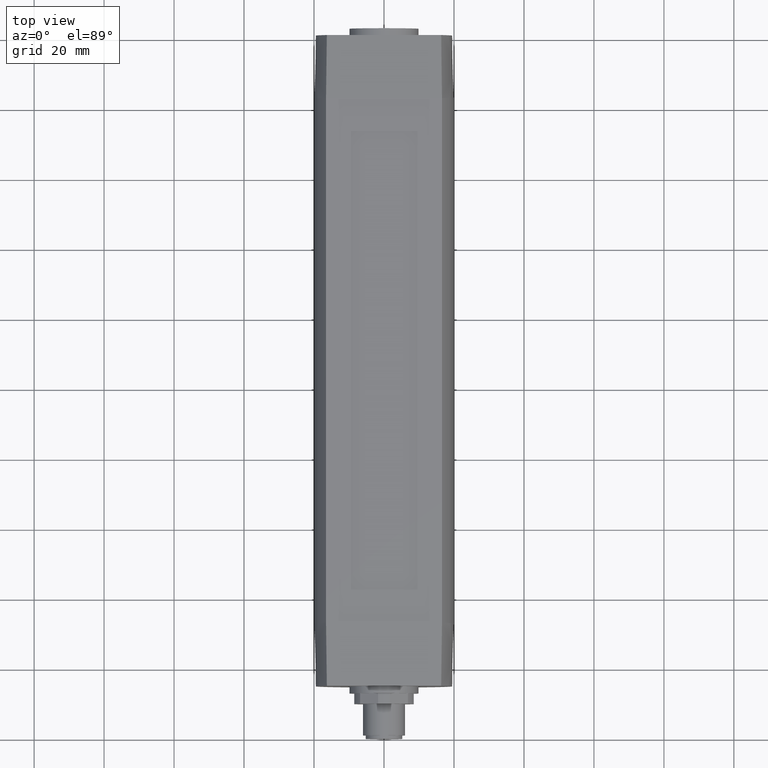
[diagram: clean part render]
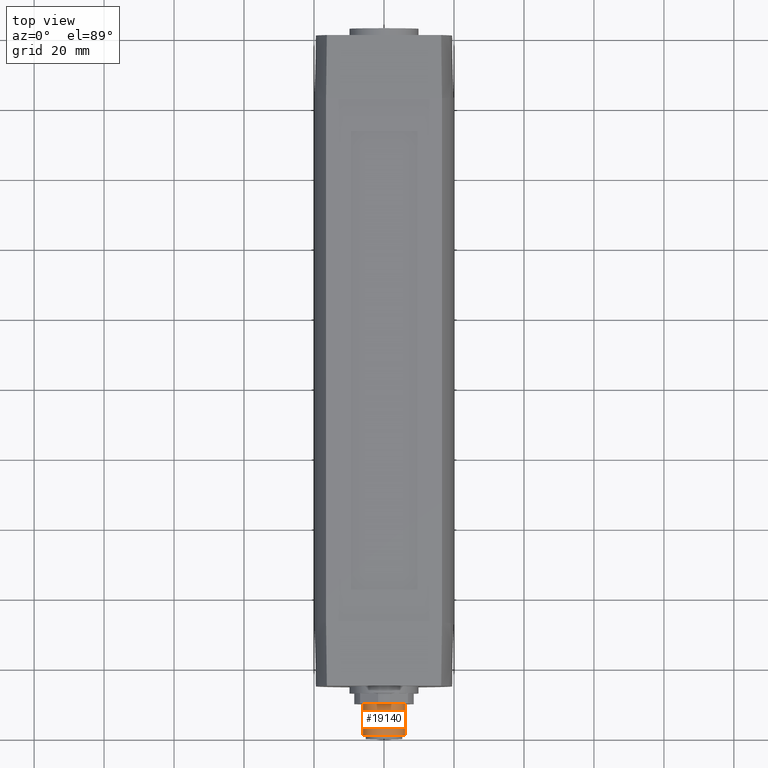
[diagram: same view with one face highlighted and labeled with its STEP entity id]
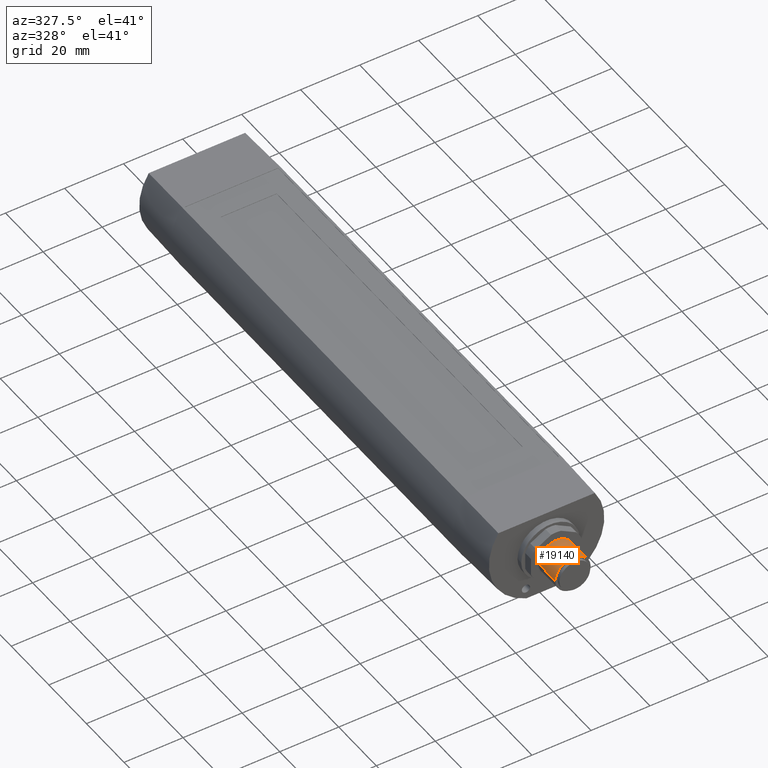
[diagram: same view with one face highlighted and labeled with its STEP entity id]
A machine part, top view. The second image highlights one B-rep face of the part: STEP entity #19140.
A second angle (auxiliary view) of the same face is appended — the face is thin or edge-on in the first view.
In plain terms, the highlighted cylindrical surface (edge-blend (fillet) strip) has radius 6 mm, axis along (0, 1, -0).
Its self-contained STEP definition (entity closure, byte-faithful):
#1200=CARTESIAN_POINT('',(1.08912878715728E-13,-1.89999999999999,-107.))
;
#1210=DIRECTION('',(0.,0.,1.));
#1220=DIRECTION('',(1.,0.,0.));
#1230=AXIS2_PLACEMENT_3D('',#1200,#1210,#1220);
#1240=CIRCLE('',#1230,6.);
#1250=CARTESIAN_POINT('',(6.00000000000011,-1.89999999999999,-107.));
#1260=VERTEX_POINT('',#1250);
#1270=CARTESIAN_POINT('',(-5.99999999999989,-1.89999999999999,-107.));
#1280=VERTEX_POINT('',#1270);
#1290=EDGE_CURVE('',#1260,#1280,#1240,.T.);
#1910=CARTESIAN_POINT('',(-5.99999999999989,-1.89999999999999,
-107.22500378));
#1920=DIRECTION('',(0.,0.,1.));
#1930=VECTOR('',#1920,1.);
#1940=LINE('',#1910,#1930);
#1950=CARTESIAN_POINT('',(-5.99999999999989,-1.89999999999999,-98.));
#1960=VERTEX_POINT('',#1950);
#1970=EDGE_CURVE('',#1280,#1960,#1940,.T.);
#1990=CARTESIAN_POINT('',(1.08912878715728E-13,-1.89999999999999,-98.));
#2000=DIRECTION('',(0.,0.,1.));
#2010=DIRECTION('',(1.,0.,0.));
#2020=AXIS2_PLACEMENT_3D('',#1990,#2000,#2010);
#2030=CIRCLE('',#2020,6.);
#2040=CARTESIAN_POINT('',(6.00000000000011,-1.89999999999999,-98.));
#2050=VERTEX_POINT('',#2040);
#2080=CARTESIAN_POINT('',(6.00000000000011,-1.89999999999999,
-107.22500378));
#2090=DIRECTION('',(0.,0.,1.));
#2100=VECTOR('',#2090,1.);
#2110=LINE('',#2080,#2100);
#2120=EDGE_CURVE('',#1260,#2050,#2110,.T.);
#3340=EDGE_CURVE('',#2050,#1960,#2030,.T.);
#19030=CARTESIAN_POINT('',(1.08912878715728E-13,-1.89999999999999,
-107.22500378));
#19040=DIRECTION('',(0.,0.,1.));
#19050=DIRECTION('',(1.,0.,0.));
#19060=AXIS2_PLACEMENT_3D('',#19030,#19040,#19050);
#19070=CYLINDRICAL_SURFACE('',#19060,6.);
#19080=ORIENTED_EDGE('',*,*,#3340,.F.);
#19090=ORIENTED_EDGE('',*,*,#1970,.T.);
#19100=ORIENTED_EDGE('',*,*,#1290,.T.);
#19110=ORIENTED_EDGE('',*,*,#2120,.F.);
#19120=EDGE_LOOP('',(#19110,#19100,#19090,#19080));
#19130=FACE_OUTER_BOUND('',#19120,.T.);
#19140=ADVANCED_FACE('',(#19130),#19070,.T.);